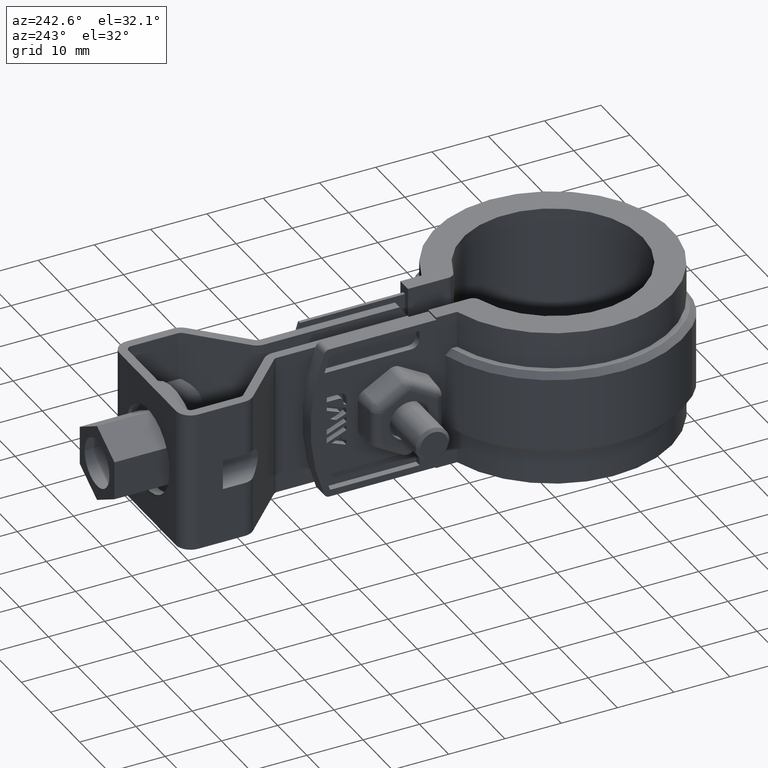
[diagram: clean part render]
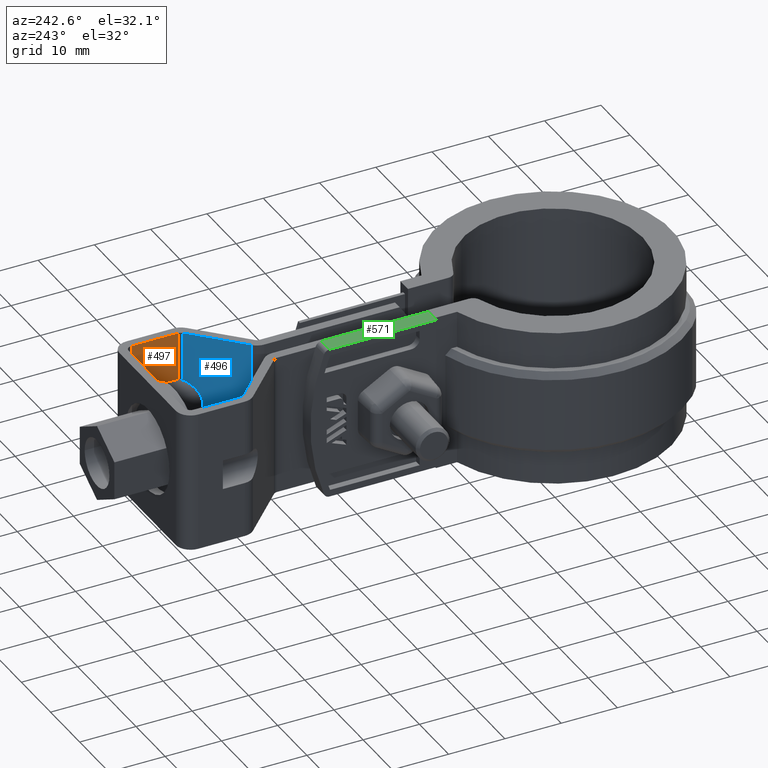
[diagram: same view with three faces highlighted in distinct colors, each labeled with its STEP entity id]
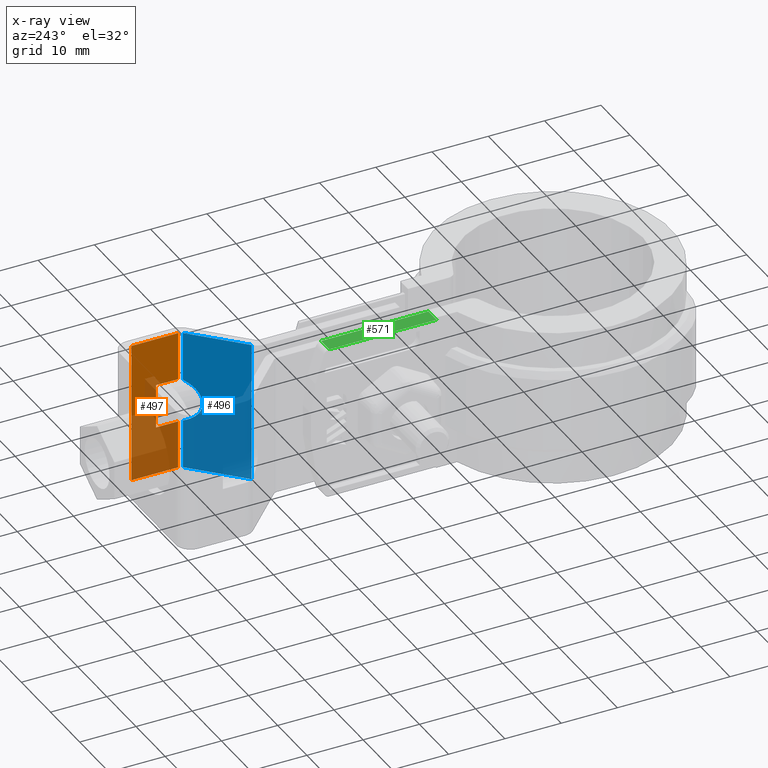
[diagram: x-ray of the same camera — body ghosted, the three highlighted faces saturated]
A machine part, auxiliary view with three faces highlighted in distinct colors.
The next image is the same camera in x-ray (body ghosted, the three faces saturated) — at least one of them is partly hidden behind the body in this view.
Their STEP definitions:

[orange] entity #497 — the highlighted planar face has unit normal (-1, 0, 0).
#497 = ADVANCED_FACE( '', ( #972 ), #973, .T. );
#972 = FACE_OUTER_BOUND( '', #2065, .T. );
#973 = PLANE( '', #2066 );
#2065 = EDGE_LOOP( '', ( #4496, #4497, #4498, #4499, #4500, #4501, #4502, #4503, #4504, #4505 ) );
#2066 = AXIS2_PLACEMENT_3D( '', #4506, #4507, #4508 );
#4496 = ORIENTED_EDGE( '', *, *, #6524, .T. );
#4497 = ORIENTED_EDGE( '', *, *, #6526, .T. );
#4498 = ORIENTED_EDGE( '', *, *, #6528, .T. );
#4499 = ORIENTED_EDGE( '', *, *, #6525, .T. );
#4500 = ORIENTED_EDGE( '', *, *, #6522, .T. );
#4501 = ORIENTED_EDGE( '', *, *, #6540, .F. );
#4502 = ORIENTED_EDGE( '', *, *, #6482, .F. );
#4503 = ORIENTED_EDGE( '', *, *, #6541, .T. );
#4504 = ORIENTED_EDGE( '', *, *, #6542, .T. );
#4505 = ORIENTED_EDGE( '', *, *, #6534, .F. );
#4506 = CARTESIAN_POINT( '', ( 10.6500009160616, 69.4043597177956, 2.29445754063029E-006 ) );
#4507 = DIRECTION( '', ( -1.00000000000000, 6.88262011548297E-009, 4.22881814054228E-010 ) );
#4508 = DIRECTION( '', ( 6.88262012252392E-009, 1.00000000000000, 1.66499459745878E-008 ) );
#6482 = EDGE_CURVE( '', #7648, #7650, #7651, .T. );
#6522 = EDGE_CURVE( '', #7727, #7725, #7728, .F. );
#6524 = EDGE_CURVE( '', #7721, #7729, #7731, .T. );
#6525 = EDGE_CURVE( '', #7713, #7727, #7732, .T. );
#6526 = EDGE_CURVE( '', #7729, #7711, #7733, .T. );
#6528 = EDGE_CURVE( '', #7711, #7713, #7735, .T. );
#6534 = EDGE_CURVE( '', #7721, #7743, #7744, .T. );
#6540 = EDGE_CURVE( '', #7650, #7725, #7752, .T. );
#6541 = EDGE_CURVE( '', #7648, #7753, #7754, .T. );
#6542 = EDGE_CURVE( '', #7753, #7743, #7755, .T. );
#7648 = VERTEX_POINT( '', #10864 );
#7650 = VERTEX_POINT( '', #10866 );
#7651 = LINE( '', #10867, #10868 );
#7711 = VERTEX_POINT( '', #10954 );
#7713 = VERTEX_POINT( '', #10956 );
#7721 = VERTEX_POINT( '', #10972 );
#7725 = VERTEX_POINT( '', #10981 );
#7727 = VERTEX_POINT( '', #10988 );
#7728 = LINE( '', #10989, #10990 );
#7729 = VERTEX_POINT( '', #10991 );
#7731 = LINE( '', #10993, #10994 );
#7732 = LINE( '', #10995, #10996 );
#7733 = LINE( '', #10997, #10998 );
#7735 = LINE( '', #11001, #11002 );
#7743 = VERTEX_POINT( '', #11015 );
#7744 = LINE( '', #11016, #11017 );
#7752 = LINE( '', #11029, #11030 );
#7753 = VERTEX_POINT( '', #11031 );
#7754 = LINE( '', #11032, #11033 );
#7755 = LINE( '', #11034, #11035 );
#10864 = CARTESIAN_POINT( '', ( 10.6500009160616, 69.4043597177956, 2.29445754063029E-006 ) );
#10866 = CARTESIAN_POINT( '', ( 10.6500008589070, 61.1001654866856, 2.15619315457882E-006 ) );
#10867 = CARTESIAN_POINT( '', ( 10.6500009160616, 69.4043597177956, 2.29445754063029E-006 ) );
#10868 = VECTOR( '', #12763, 1000.00000000000 );
#10954 = CARTESIAN_POINT( '', ( 10.6500008795988, 65.0043599610920, -14.6124607962300 ) );
#10956 = CARTESIAN_POINT( '', ( 10.6500008813854, 65.0043598907473, -10.3875347613745 ) );
#10972 = CARTESIAN_POINT( '', ( 10.6500008519560, 61.1001657603661, -16.4373192683288 ) );
#10981 = CARTESIAN_POINT( '', ( 10.6500008552860, 61.1001656292538, -8.56267641928485 ) );
#10988 = CARTESIAN_POINT( '', ( 10.6500008821571, 65.0043598603635, -8.56267635428024 ) );
#10989 = CARTESIAN_POINT( '', ( 10.6500007789178, 50.0043598603637, -8.56267660402941 ) );
#10990 = VECTOR( '', #12833, 1000.00000000000 );
#10991 = CARTESIAN_POINT( '', ( 10.6500008788271, 65.0043599914758, -16.4373192033242 ) );
#10993 = CARTESIAN_POINT( '', ( 10.6500007755878, 50.0043599914760, -16.4373194530734 ) );
#10994 = VECTOR( '', #12837, 1000.00000000000 );
#10995 = CARTESIAN_POINT( '', ( 10.6500008857781, 65.0043597177956, 2.22119778126029E-006 ) );
#10996 = VECTOR( '', #12838, 1000.00000000000 );
#10997 = CARTESIAN_POINT( '', ( 10.6500008857781, 65.0043597177956, 2.22119778126029E-006 ) );
#10998 = VECTOR( '', #12839, 1000.00000000000 );
#11001 = CARTESIAN_POINT( '', ( 10.6500008857781, 65.0043597177956, 2.22119778126029E-006 ) );
#11002 = VECTOR( '', #12841, 1000.00000000000 );
#11015 = CARTESIAN_POINT( '', ( 10.6500008483350, 61.1001659029342, -24.9999978438068 ) );
#11016 = CARTESIAN_POINT( '', ( 10.6500008589070, 61.1001654866856, 2.15619315457882E-006 ) );
#11017 = VECTOR( '', #12847, 1000.00000000000 );
#11029 = CARTESIAN_POINT( '', ( 10.6500008589070, 61.1001654866856, 2.15619315457882E-006 ) );
#11030 = VECTOR( '', #12855, 1000.00000000000 );
#11031 = CARTESIAN_POINT( '', ( 10.6500009054896, 69.4043601340442, -24.9999977055425 ) );
#11032 = CARTESIAN_POINT( '', ( 10.6500009160616, 69.4043597177956, 2.29445754063029E-006 ) );
#11033 = VECTOR( '', #12856, 1000.00000000000 );
#11034 = CARTESIAN_POINT( '', ( 10.6500009054896, 69.4043601340442, -24.9999977055425 ) );
#11035 = VECTOR( '', #12857, 1000.00000000000 );
#12763 = DIRECTION( '', ( -6.88262012252392E-009, -1.00000000000000, -1.66499459745878E-008 ) );
#12833 = DIRECTION( '', ( 6.88262012252392E-009, 1.00000000000000, 1.66499459745878E-008 ) );
#12837 = DIRECTION( '', ( 6.88262012252392E-009, 1.00000000000000, 1.66499459745878E-008 ) );
#12838 = DIRECTION( '', ( 4.22881699458974E-010, -1.66499459774983E-008, 1.00000000000000 ) );
#12839 = DIRECTION( '', ( 4.22881699458974E-010, -1.66499459774983E-008, 1.00000000000000 ) );
#12841 = DIRECTION( '', ( 4.22881699458974E-010, -1.66499459774983E-008, 1.00000000000000 ) );
#12847 = DIRECTION( '', ( -4.22881699458974E-010, 1.66499459774983E-008, -1.00000000000000 ) );
#12855 = DIRECTION( '', ( -4.22881699458974E-010, 1.66499459774983E-008, -1.00000000000000 ) );
#12856 = DIRECTION( '', ( -4.22881699458974E-010, 1.66499459774983E-008, -1.00000000000000 ) );
#12857 = DIRECTION( '', ( -6.88262012252392E-009, -1.00000000000000, -1.66499459745878E-008 ) );

[blue] entity #496 — the highlighted planar face has unit normal (-0.6983, 0.7158, 0).
#496 = ADVANCED_FACE( '', ( #970 ), #971, .T. );
#970 = FACE_OUTER_BOUND( '', #2063, .T. );
#971 = PLANE( '', #2064 );
#2063 = EDGE_LOOP( '', ( #4487, #4488, #4489, #4490, #4491, #4492 ) );
#2064 = AXIS2_PLACEMENT_3D( '', #4493, #4494, #4495 );
#4487 = ORIENTED_EDGE( '', *, *, #6484, .F. );
#4488 = ORIENTED_EDGE( '', *, *, #6537, .T. );
#4489 = ORIENTED_EDGE( '', *, *, #6520, .T. );
#4490 = ORIENTED_EDGE( '', *, *, #6536, .T. );
#4491 = ORIENTED_EDGE( '', *, *, #6538, .T. );
#4492 = ORIENTED_EDGE( '', *, *, #6539, .F. );
#4493 = CARTESIAN_POINT( '', ( 10.3483246895111, 60.3843835242434, 2.14440300239094E-006 ) );
#4494 = DIRECTION( '', ( -0.698323830604044, 0.715781969324804, 1.22130394891839E-008 ) );
#4495 = DIRECTION( '', ( 0.715781969324804, 0.698323830604043, 1.13243629587269E-008 ) );
#6484 = EDGE_CURVE( '', #7652, #7654, #7655, .T. );
#6520 = EDGE_CURVE( '', #7723, #7720, #7724, .T. );
#6536 = EDGE_CURVE( '', #7720, #7745, #7747, .T. );
#6537 = EDGE_CURVE( '', #7652, #7723, #7748, .T. );
#6538 = EDGE_CURVE( '', #7745, #7749, #7750, .T. );
#6539 = EDGE_CURVE( '', #7654, #7749, #7751, .F. );
#7652 = VERTEX_POINT( '', #10869 );
#7654 = VERTEX_POINT( '', #10871 );
#7655 = LINE( '', #10872, #10873 );
#7720 = VERTEX_POINT( '', #10971 );
#7723 = VERTEX_POINT( '', #10979 );
#7724 = ELLIPSE( '', #10980, 5.93756228945901, 4.24999999999996 );
#7745 = VERTEX_POINT( '', #11018 );
#7747 = LINE( '', #11020, #11021 );
#7748 = LINE( '', #11022, #11023 );
#7749 = VERTEX_POINT( '', #11024 );
#7750 = LINE( '', #11025, #11026 );
#7751 = LINE( '', #11027, #11028 );
#10869 = CARTESIAN_POINT( '', ( 10.3483246895111, 60.3843835242434, 2.14440300239094E-006 ) );
#10871 = CARTESIAN_POINT( '', ( 2.18435882678229, 52.4195392581057, 2.01524116838492E-006 ) );
#10872 = CARTESIAN_POINT( '', ( 10.3483246895111, 60.3843835242434, 2.14440300239094E-006 ) );
#10873 = VECTOR( '', #12767, 1000.00000000000 );
#10971 = CARTESIAN_POINT( '', ( 10.3483246826178, 60.3843837956510, -16.3008040550090 ) );
#10979 = CARTESIAN_POINT( '', ( 10.3483246858324, 60.3843836690845, -8.69919165618502 ) );
#10980 = AXIS2_PLACEMENT_3D( '', #12830, #12831, #12832 );
#11018 = CARTESIAN_POINT( '', ( 10.3483246789390, 60.3843839404921, -24.9999978555970 ) );
#11020 = CARTESIAN_POINT( '', ( 10.3483246895111, 60.3843835242434, 2.14440300239094E-006 ) );
#11021 = VECTOR( '', #12851, 1000.00000000000 );
#11022 = CARTESIAN_POINT( '', ( 10.3483246895111, 60.3843835242434, 2.14440300239094E-006 ) );
#11023 = VECTOR( '', #12852, 1000.00000000000 );
#11024 = CARTESIAN_POINT( '', ( 2.18435881621025, 52.4195396743543, -24.9999979847588 ) );
#11025 = CARTESIAN_POINT( '', ( 10.3483246789390, 60.3843839404921, -24.9999978555970 ) );
#11026 = VECTOR( '', #12853, 1000.00000000000 );
#11027 = CARTESIAN_POINT( '', ( 2.18435882678229, 52.4195392581057, 2.01524116838492E-006 ) );
#11028 = VECTOR( '', #12854, 1000.00000000000 );
#12767 = DIRECTION( '', ( -0.715781969324801, -0.698323830604047, -1.13243629587269E-008 ) );
#12830 = CARTESIAN_POINT( '', ( 12.2500008614638, 62.2396774524799, -12.4999978255106 ) );
#12831 = DIRECTION( '', ( 0.698323830604044, -0.715781969324804, -1.22130394891839E-008 ) );
#12832 = DIRECTION( '', ( 0.715781969324804, 0.698323830604043, 1.13243629587269E-008 ) );
#12851 = DIRECTION( '', ( -4.22881699458974E-010, 1.66499459774983E-008, -1.00000000000000 ) );
#12852 = DIRECTION( '', ( -4.22881699458974E-010, 1.66499459774983E-008, -1.00000000000000 ) );
#12853 = DIRECTION( '', ( -0.715781969324801, -0.698323830604047, -1.13243629587269E-008 ) );
#12854 = DIRECTION( '', ( 4.22881638228656E-010, -1.66499460372352E-008, 1.00000000000000 ) );

[green] entity #571 — the highlighted planar face has unit normal (0, -0, -1).
#571 = ADVANCED_FACE( '', ( #1150 ), #1151, .F. );
#1150 = FACE_OUTER_BOUND( '', #2243, .T. );
#1151 = PLANE( '', #2244 );
#2243 = EDGE_LOOP( '', ( #5257, #5258, #5259, #5260 ) );
#2244 = AXIS2_PLACEMENT_3D( '', #5261, #5262, #5263 );
#5257 = ORIENTED_EDGE( '', *, *, #6842, .F. );
#5258 = ORIENTED_EDGE( '', *, *, #6871, .T. );
#5259 = ORIENTED_EDGE( '', *, *, #6748, .F. );
#5260 = ORIENTED_EDGE( '', *, *, #6870, .T. );
#5261 = CARTESIAN_POINT( '', ( -6.29999999999995, 23.9443584449242, 1.19999999999952 ) );
#5262 = DIRECTION( '', ( 3.52863551097454E-016, -1.54758148828869E-020, -1.00000000000000 ) );
#5263 = DIRECTION( '', ( -6.66437783455702E-016, -1.00000000000000, 1.54758148826517E-020 ) );
#6748 = EDGE_CURVE( '', #8128, #8130, #8131, .T. );
#6842 = EDGE_CURVE( '', #8306, #8308, #8309, .T. );
#6870 = EDGE_CURVE( '', #8128, #8308, #8345, .T. );
#6871 = EDGE_CURVE( '', #8306, #8130, #8346, .T. );
#8128 = VERTEX_POINT( '', #11589 );
#8130 = VERTEX_POINT( '', #11592 );
#8131 = LINE( '', #11593, #11594 );
#8306 = VERTEX_POINT( '', #11845 );
#8308 = VERTEX_POINT( '', #11847 );
#8309 = LINE( '', #11848, #11849 );
#8345 = LINE( '', #11911, #11912 );
#8346 = LINE( '', #11913, #11914 );
#11589 = CARTESIAN_POINT( '', ( -6.29999999999995, 23.9443584449242, 1.19999999999950 ) );
#11592 = CARTESIAN_POINT( '', ( -6.29999999999994, 42.9878146806130, 1.19999999999953 ) );
#11593 = CARTESIAN_POINT( '', ( -6.29999999999995, 23.9443584449242, 1.19999999999952 ) );
#11594 = VECTOR( '', #13149, 999.999999999969 );
#11845 = CARTESIAN_POINT( '', ( -3.50000000000003, 42.9878146806130, 1.19999999999953 ) );
#11847 = CARTESIAN_POINT( '', ( -3.50000000000004, 23.9443584449242, 1.19999999999954 ) );
#11848 = CARTESIAN_POINT( '', ( -3.50000000000003, 43.2356485971529, 1.19999999999954 ) );
#11849 = VECTOR( '', #13277, 999.999999999968 );
#11911 = CARTESIAN_POINT( '', ( -6.29999999999995, 23.9443584449242, 1.19999999999950 ) );
#11912 = VECTOR( '', #13307, 1000.00000000003 );
#11913 = CARTESIAN_POINT( '', ( -3.50000000000003, 42.9878146806130, 1.19999999999953 ) );
#11914 = VECTOR( '', #13308, 1000.00000000003 );
#13149 = DIRECTION( '', ( 6.66766615209514E-016, 1.00000000000000, -1.54758148745600E-020 ) );
#13277 = DIRECTION( '', ( -6.66766615209514E-016, -1.00000000000000, 6.98226199080604E-017 ) );
#13307 = DIRECTION( '', ( 1.00000000000000, -6.66437783455696E-016, 3.52863551097454E-016 ) );
#13308 = DIRECTION( '', ( -1.00000000000000, 4.33515772028051E-016, -3.52788033401755E-016 ) );